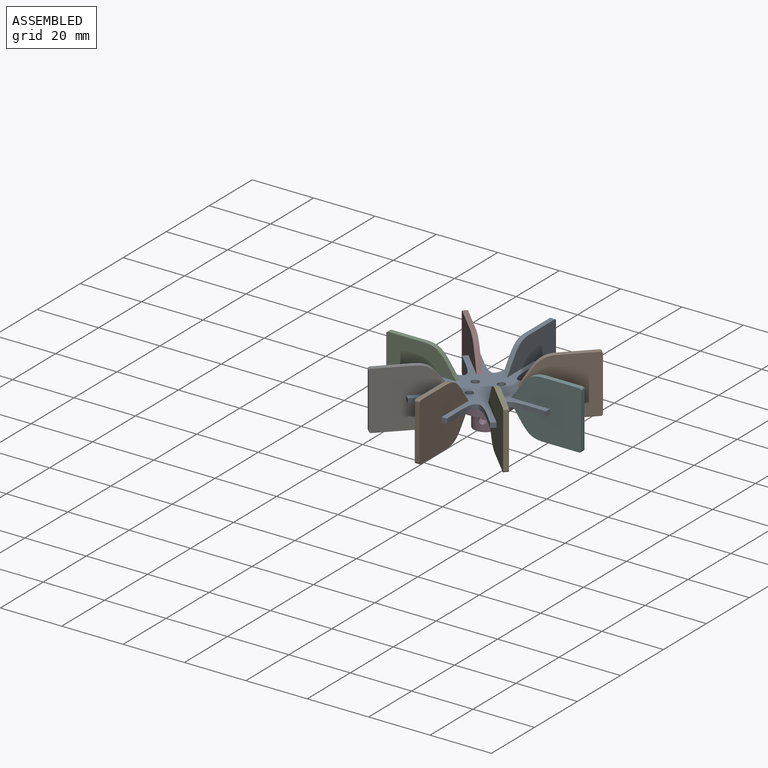
[diagram: assembled view]
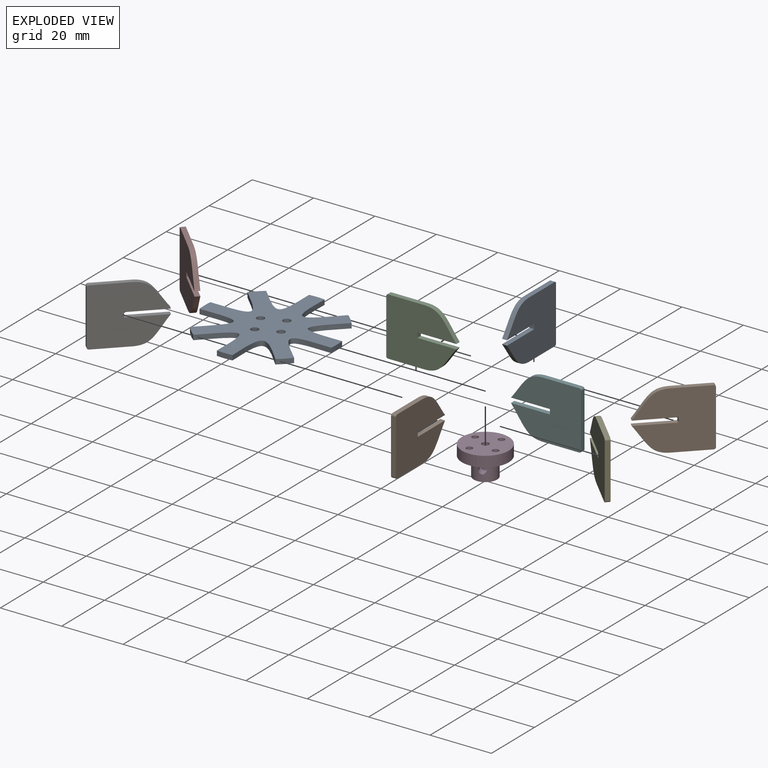
[diagram: exploded view]
GUIDED TOUR — MATED ASSEMBLY (Onshape document fc51b0f20db7901892bb4004, AutoMate assembly fc51b0f20db7901892bb4004_535e6611bf821f6bd09651c5_6fd7693e11c4a4ac724cb510_default)

This assembly has 10 components, labeled P0..P9 below (a component is one placed occurrence of a part; the same part can appear more than once), held together by 2 mates. A mate is a constraint between two components; its type names the relative motion it leaves free:
  FASTENED — locks the two components together rigidly (no relative motion).
Axis/direction vectors are unit vectors and 'through' points are millimeter coordinates, both in the assembly's world frame.

MATES
  1. FASTENED "Fastened 1": P8 <-> P9, direction (0.000, 1.000, 0.000) through (0.00, -21.58, -1.59) mm
  2. FASTENED "Fastened 2": P8 <-> P3, direction (0.000, 0.000, -1.000) through (0.00, 0.00, -2.38) mm

ASSEMBLY ORDER
  1. P5 — the base component [order verified]
  2. P1 [order verified]
  3. P0 [order verified]
  4. P2 [order verified]
  5. P8 [order verified]
  6. P7 [order verified]
  7. P6 [order verified]
  8. P4 [order verified]
  9. P9 [order verified]
  10. P3 [order verified]
Order-tag legend:
  [order verified] — this step's position reverses a verified removal order: the component was checked to insert without passing through the ones already placed.

Of the 10 components, 1 carries the full construction recipe — the FeatureScript program that regenerates the part's solid from scratch; the rest are supplied as boundary geometry only.
Each toured component is shown spotlighted twice — in the assembled view, then in the exploded view, where a leader line traces a displaced component back to its assembled socket (saturated green if recipe-attached, orange if geometry-only; every other component desaturated gray) — followed by its recipe or geometry summary and the mates that hold it.
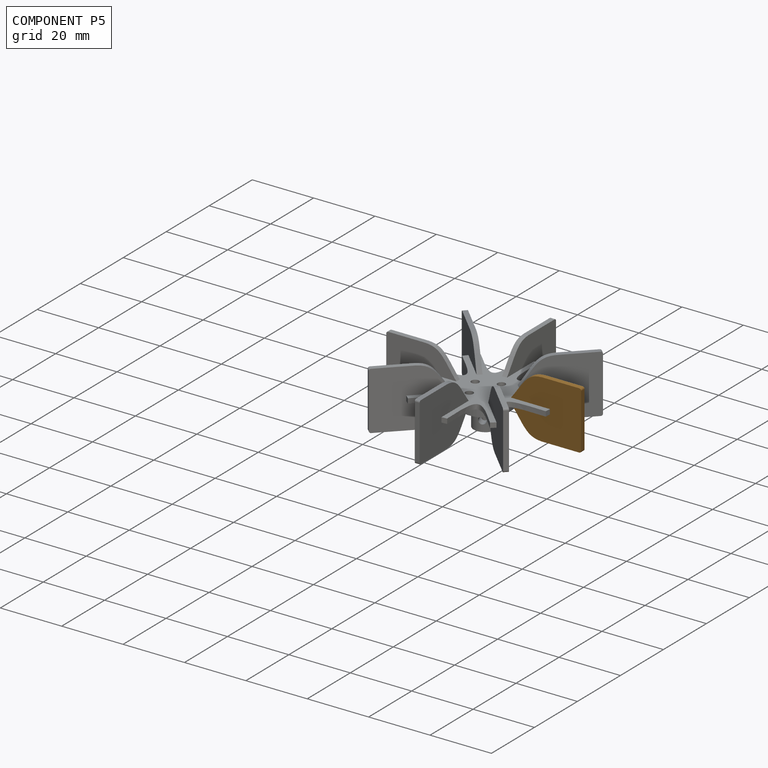
[diagram: component P5 — assembled]
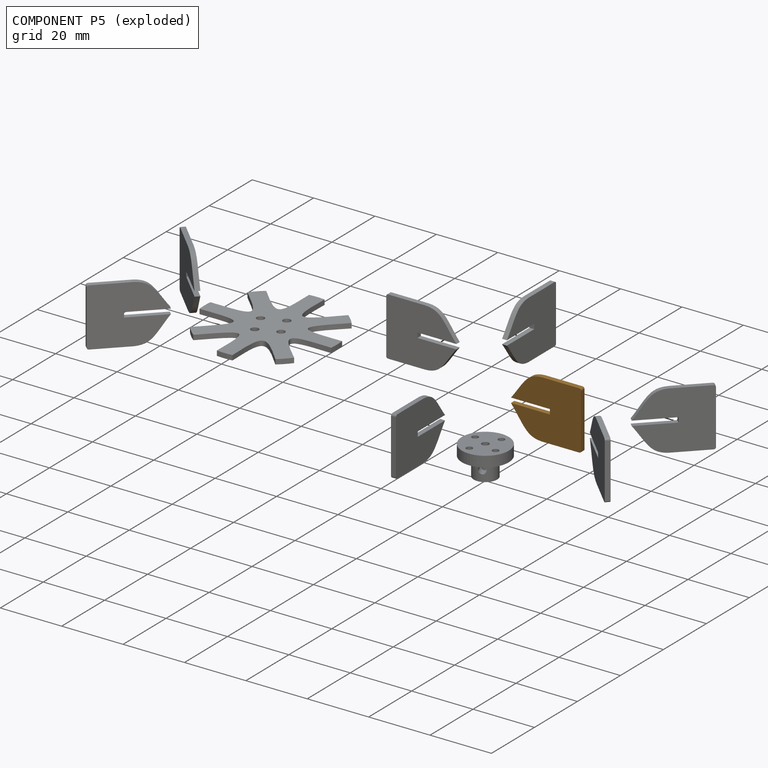
[diagram: component P5 — exploded]
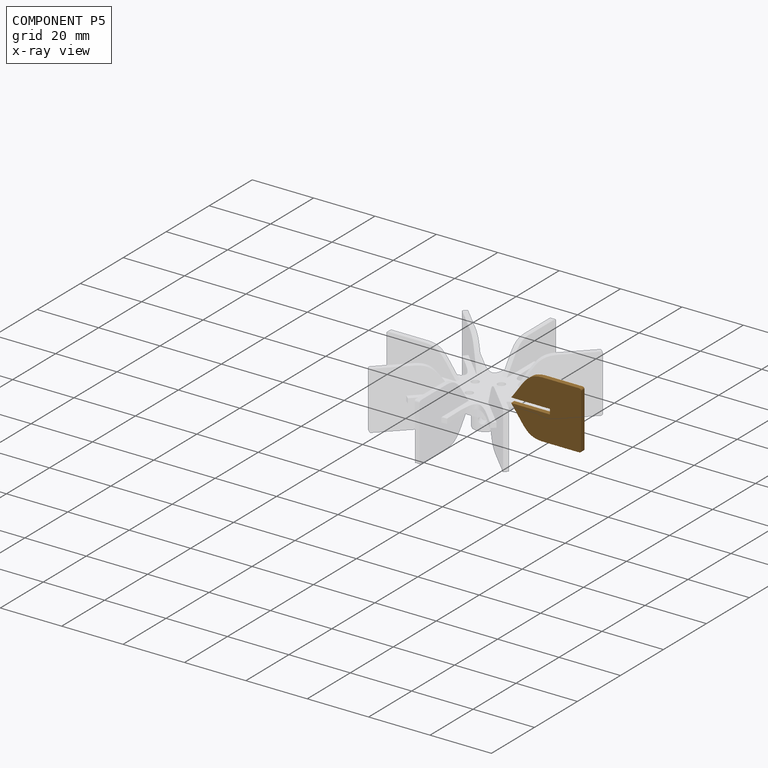
[diagram: component P5 — x-ray view]
COMPONENT P5 — geometry summary (no construction recipe available for this part):
  bounding box: 22.9 x 18.9 x 1.6 mm
  B-rep topology: 1 solid, 12 faces, 60 edges
  volume: 561 mm^3 (82% of its bounding box)
  symmetry: 2-fold rotationally symmetric about the x axis; mirror-symmetric across its y mid-plane, z mid-plane
Held by: no mates (free).
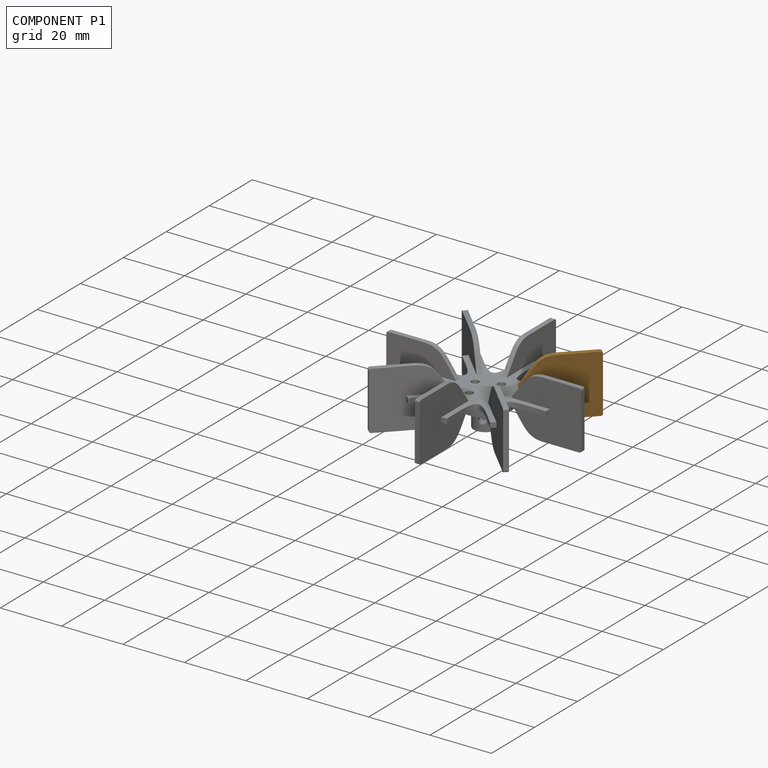
[diagram: component P1 — assembled]
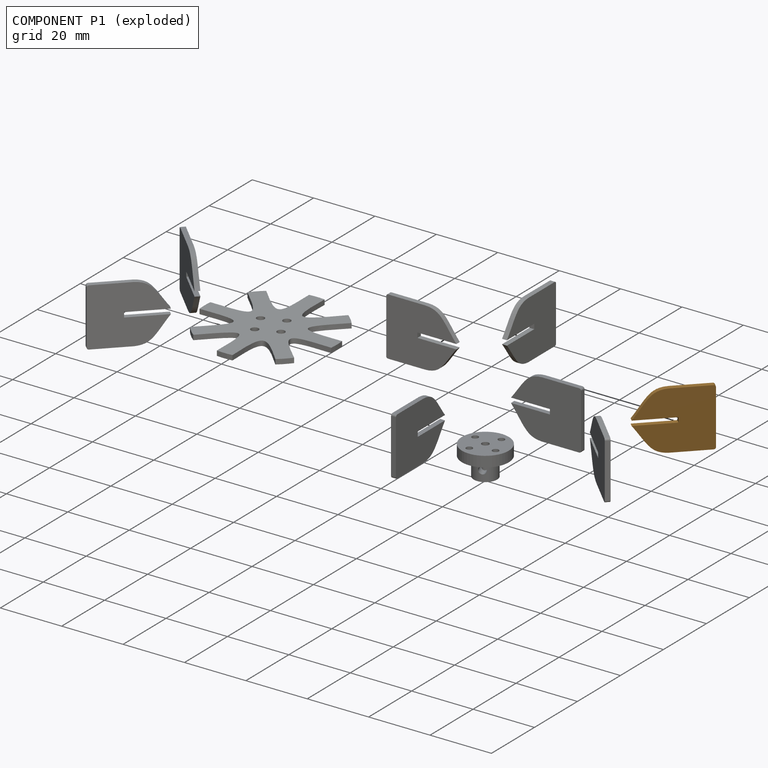
[diagram: component P1 — exploded]
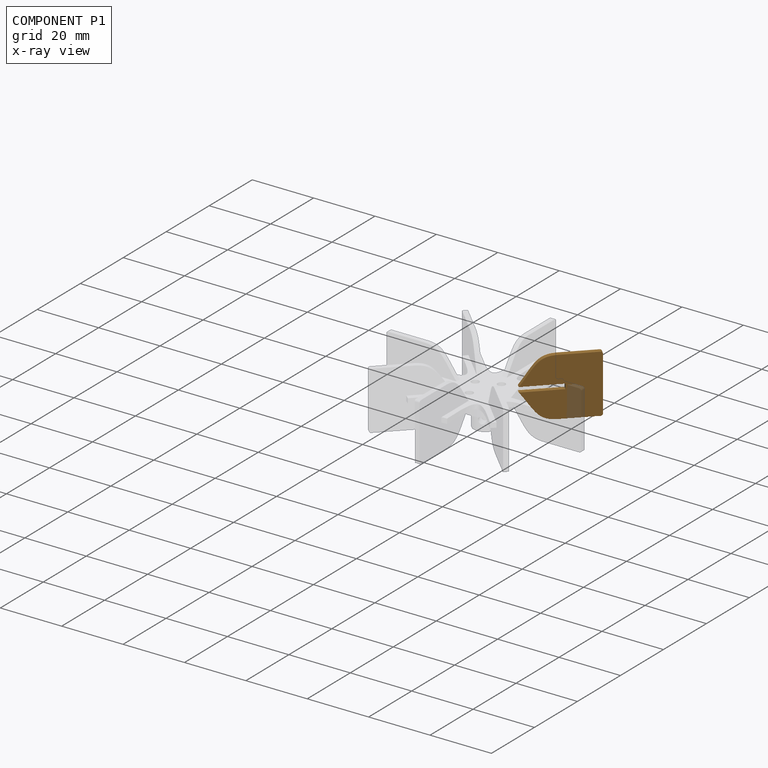
[diagram: component P1 — x-ray view]
COMPONENT P1 — geometry summary (no construction recipe available for this part):
  bounding box: 22.9 x 18.9 x 1.6 mm
  B-rep topology: 1 solid, 12 faces, 60 edges
  volume: 561 mm^3 (82% of its bounding box)
  symmetry: 2-fold rotationally symmetric about the x axis; mirror-symmetric across its y mid-plane, z mid-plane
Held by: no mates (free).
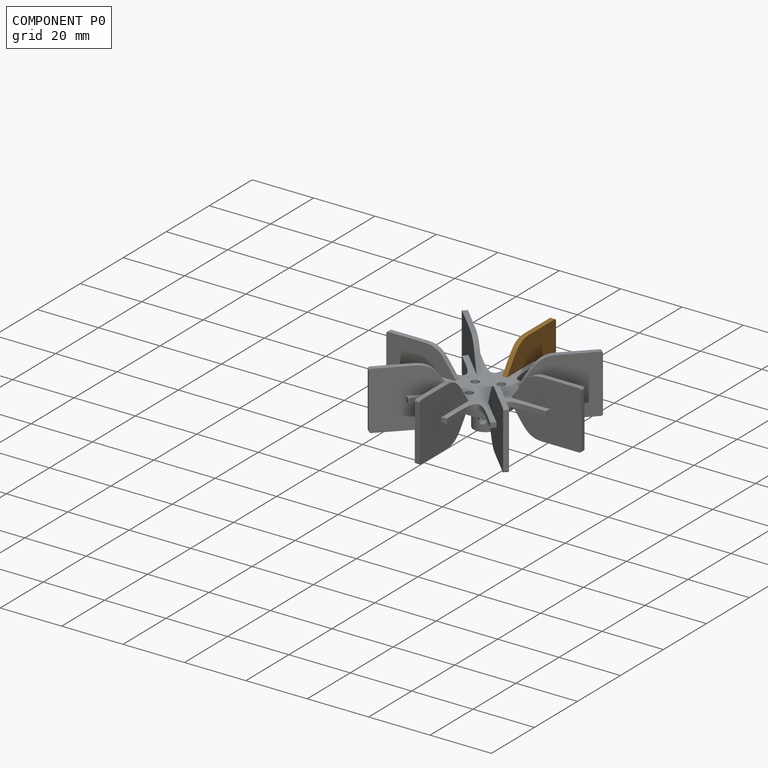
[diagram: component P0 — assembled]
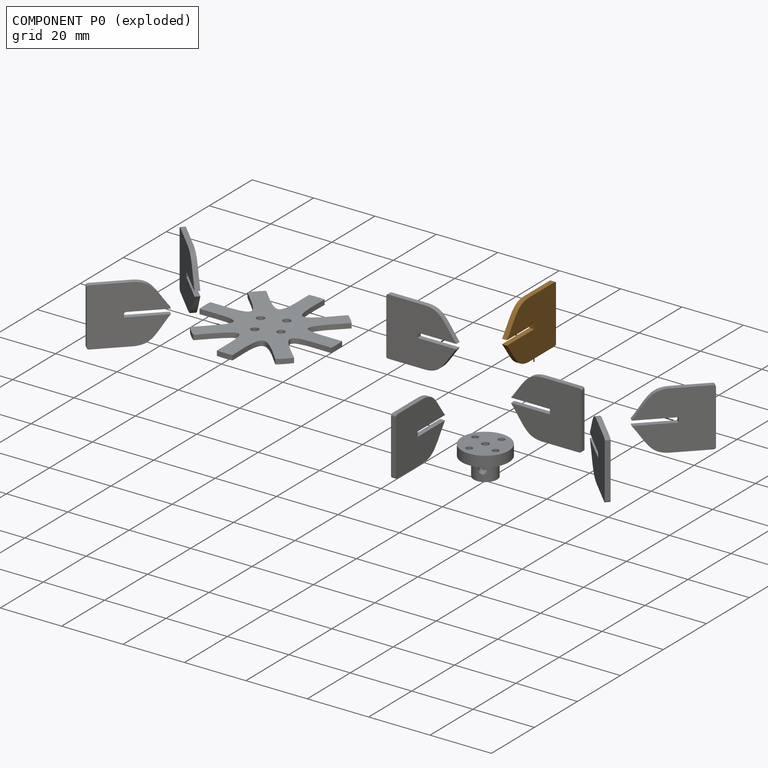
[diagram: component P0 — exploded]
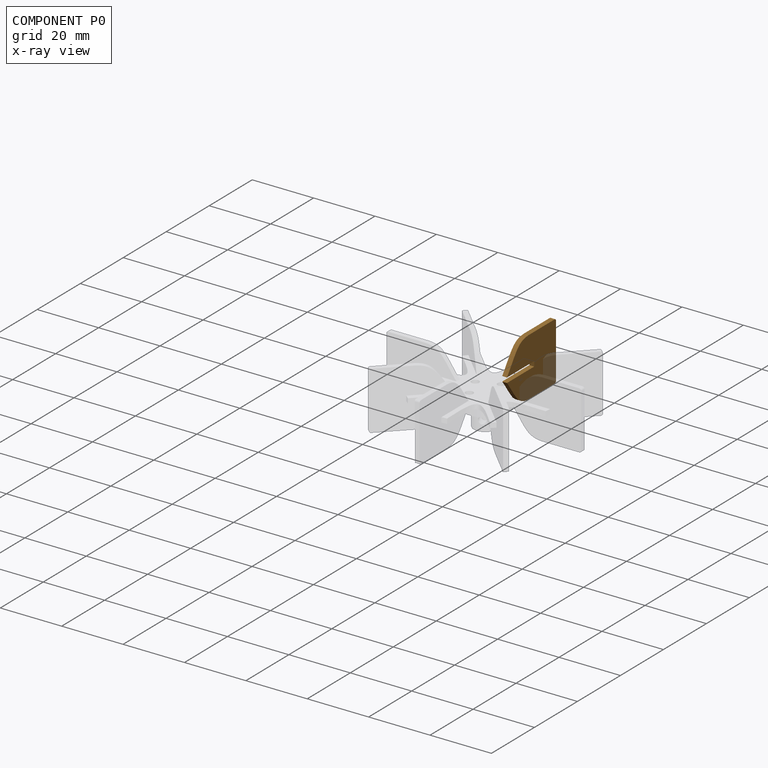
[diagram: component P0 — x-ray view]
COMPONENT P0 — geometry summary (no construction recipe available for this part):
  bounding box: 22.9 x 18.9 x 1.6 mm
  B-rep topology: 1 solid, 12 faces, 60 edges
  volume: 561 mm^3 (82% of its bounding box)
  symmetry: 2-fold rotationally symmetric about the x axis; mirror-symmetric across its y mid-plane, z mid-plane
Held by: no mates (free).
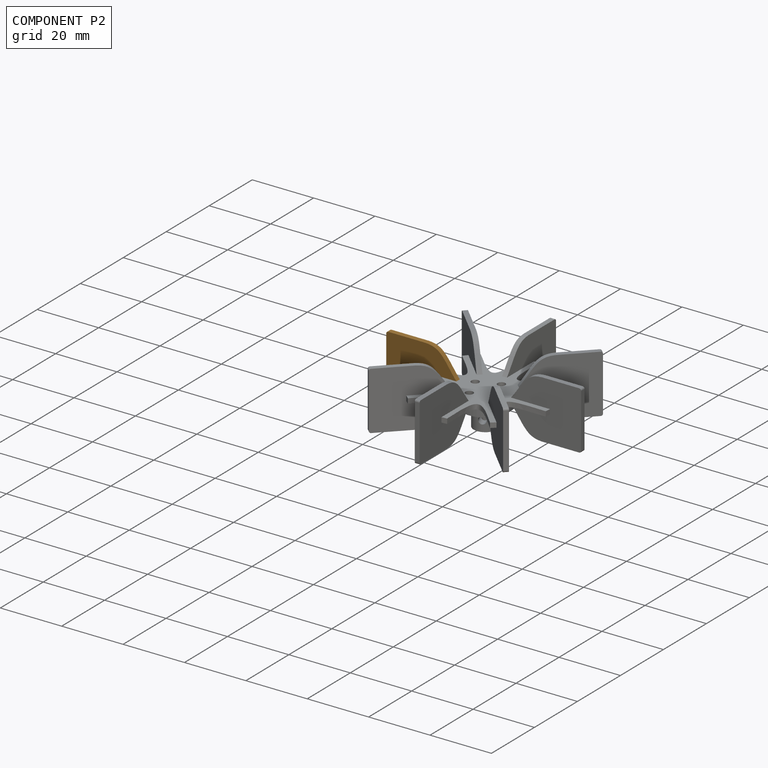
[diagram: component P2 — assembled]
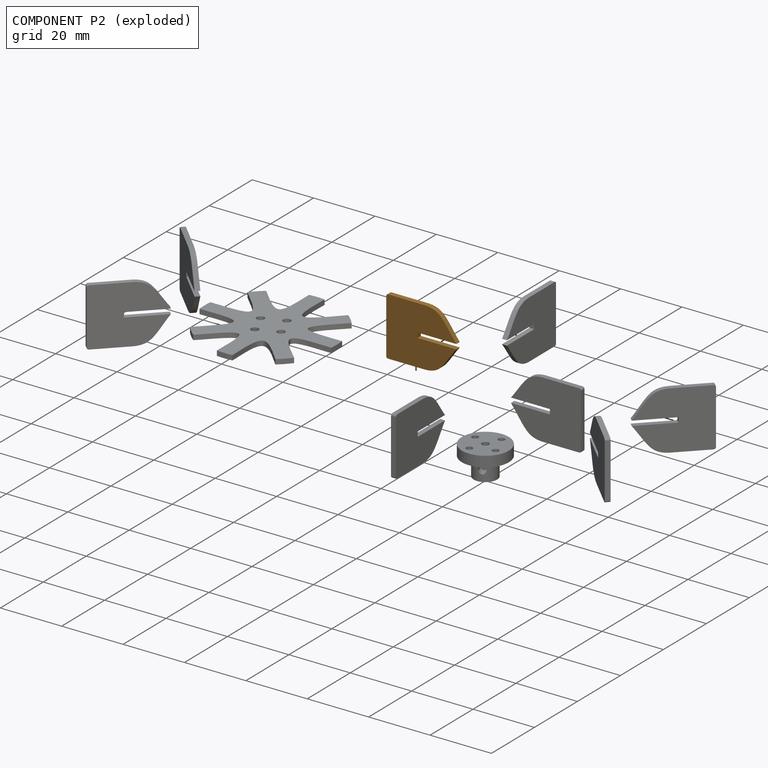
[diagram: component P2 — exploded]
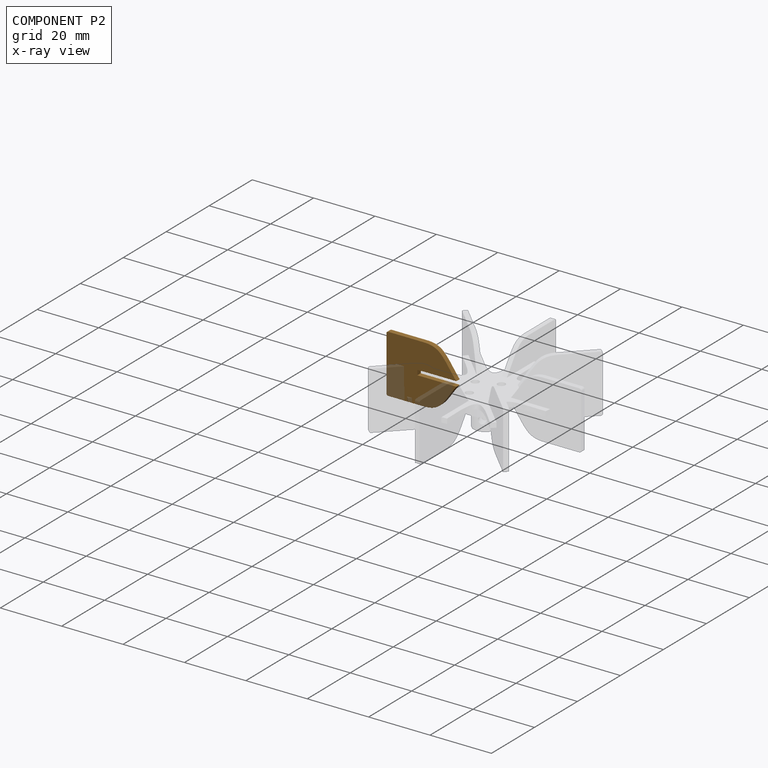
[diagram: component P2 — x-ray view]
COMPONENT P2 — geometry summary (no construction recipe available for this part):
  bounding box: 22.9 x 18.9 x 1.6 mm
  B-rep topology: 1 solid, 12 faces, 60 edges
  volume: 561 mm^3 (82% of its bounding box)
  symmetry: 2-fold rotationally symmetric about the x axis; mirror-symmetric across its y mid-plane, z mid-plane
Held by: no mates (free).
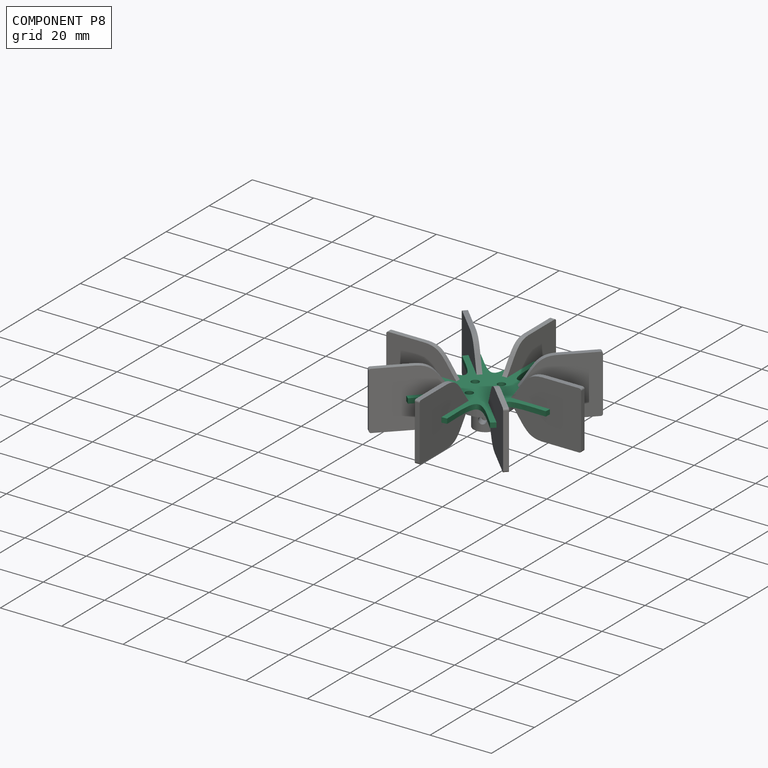
[diagram: component P8 — assembled]
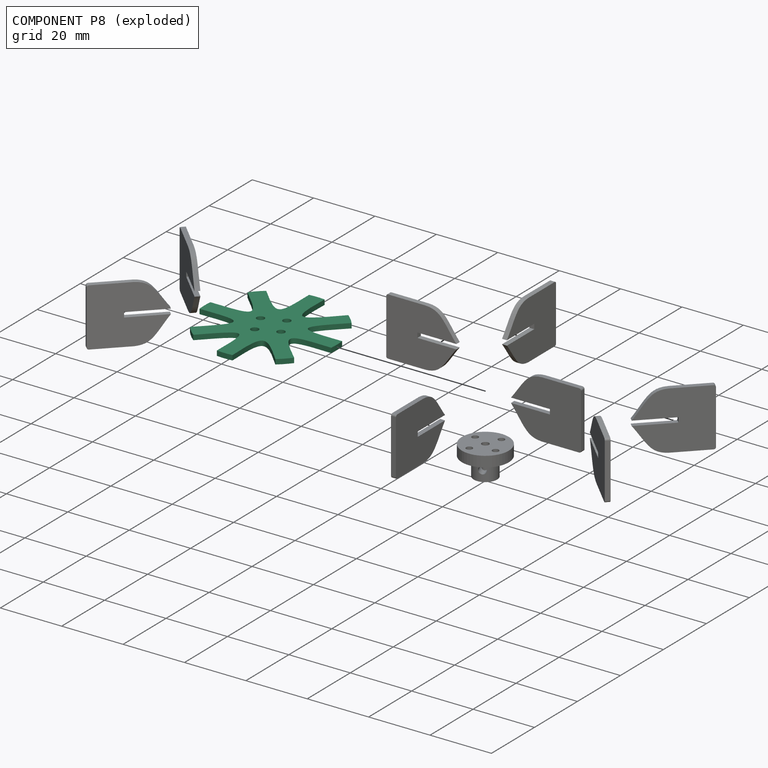
[diagram: component P8 — exploded]
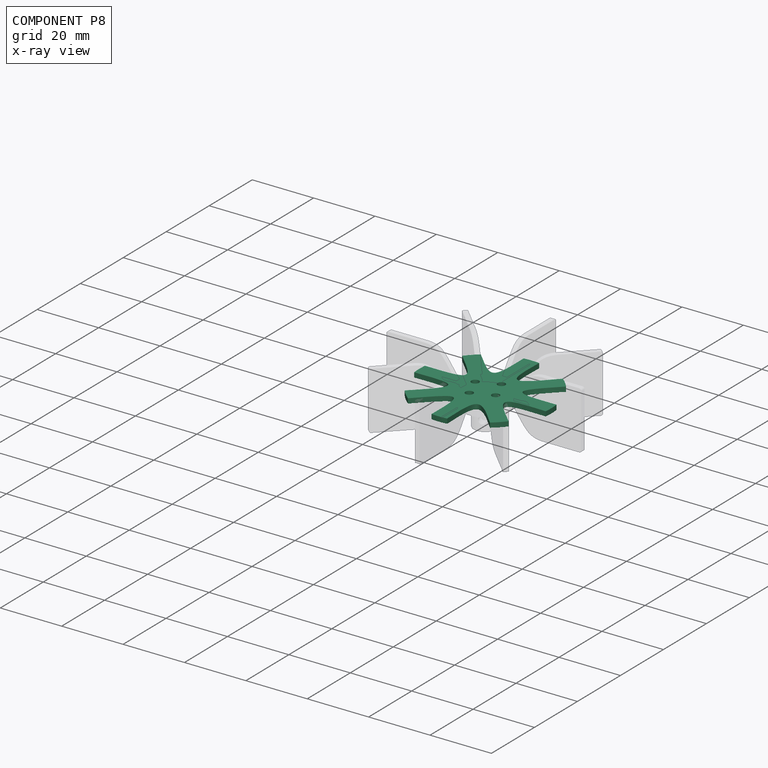
[diagram: component P8 — x-ray view]
COMPONENT P8 — recipe-attached (CADFS 00375645, mesh-verified: the recipe's output STEP matches this component's geometry to below the mesh-comparison resolution (tessellation chordal tolerance ~0.0916 mm)).
Held by: FASTENED mate "Fastened 1" to P9; FASTENED mate "Fastened 2" to P3.
Construction recipe (FeatureScript — the CAD program that rebuilds this solid; sketch coordinates are in the units given by the * unit suffixes, e.g. mm):

FeatureScript 1511;
import(path : "onshape/std/geometry.fs", version : "1511.0");
import(path : "onshape/std/common.fs", version : "1511.0");
const mm = millimeter;
const VERTEX = EntityType.VERTEX;
const EDGE = EntityType.EDGE;
const FACE = EntityType.FACE;
const BODY = EntityType.BODY;
function v(x, y){return vector(x, y);}
function OD(order){return orderDisambiguation(order);}
function OSD(set){return originalSetDisambiguation(set);}
function TD(topology){return topologyDisambiguation(topology);}
function TDD(query){return trueDependencyDisambiguation(query);}
function sQuery(a, b, c) {return sketchEntityQuery(a, b, c);}

annotation { "Feature Type Name" : "Feature", "Feature Type Description" : "" }
export const myFeature = defineFeature(function(context is Context, id is Id, definition is map)
    precondition{}
    {
        {
            var Q0;
            Q0=qCreatedBy(makeId("Top.planeOp"),FACE);
            var sketch = newSketch(context, id + "F0", { "sketchPlane" : qUnion([Q0])});
            skLineSegment(sketch, "E0", {"start": v(0, 30.67) * mm, "end": v(0, -28.01) * mm, "construction": true});
            skLineSegment(sketch, "E1", {"start": v(-28.25, 0) * mm, "end": v(29.1, 0) * mm, "construction": true});
            skLineSegment(sketch, "E2", {"start": v(-21.4, 21.4) * mm, "end": v(20.62, -20.62) * mm, "construction": true});
            skLineSegment(sketch, "E3", {"start": v(21.66, 21.66) * mm, "end": v(-18.96, -18.96) * mm, "construction": true});
            skArc(sketch, "E4", {"start": v(-16.96, 13.36) * mm, "mid": v(-15.27, 15.27) * mm, "end": v(-13.36, 16.96) * mm});
            skArc(sketch, "E5", {"start": v(-2.54, 21.44) * mm, "mid": v(0, 21.59) * mm, "end": v(2.54, 21.44) * mm});
            skArc(sketch, "E6", {"start": v(13.36, 16.96) * mm, "mid": v(15.27, 15.27) * mm, "end": v(16.96, 13.36) * mm});
            skArc(sketch, "E7", {"start": v(-13.36, 16.96) * mm, "mid": v(-6.9, 16.66) * mm, "end": v(-2.54, 21.44) * mm});
            skArc(sketch, "E8", {"start": v(2.54, 21.44) * mm, "mid": v(6.9, 16.66) * mm, "end": v(13.36, 16.96) * mm});
            skArc(sketch, "E9", {"start": v(21.44, 2.54) * mm, "mid": v(21.6, 0) * mm, "end": v(21.44, -2.54) * mm});
            skArc(sketch, "E10", {"start": v(16.96, -13.36) * mm, "mid": v(15.27, -15.27) * mm, "end": v(13.36, -16.96) * mm});
            skArc(sketch, "E11", {"start": v(2.54, -21.44) * mm, "mid": v(0, -21.6) * mm, "end": v(-2.54, -21.44) * mm});
            skArc(sketch, "E12", {"start": v(-13.36, -16.96) * mm, "mid": v(-15.27, -15.27) * mm, "end": v(-16.96, -13.36) * mm});
            skArc(sketch, "E13", {"start": v(-21.44, -2.54) * mm, "mid": v(-21.59, 0) * mm, "end": v(-21.44, 2.54) * mm});
            skArc(sketch, "E14", {"start": v(-21.44, 2.54) * mm, "mid": v(-16.66, 6.9) * mm, "end": v(-16.96, 13.36) * mm});
            skArc(sketch, "E15", {"start": v(-16.96, -13.36) * mm, "mid": v(-16.66, -6.9) * mm, "end": v(-21.44, -2.54) * mm});
            skArc(sketch, "E16", {"start": v(-2.54, -21.44) * mm, "mid": v(-6.9, -16.66) * mm, "end": v(-13.36, -16.96) * mm});
            skArc(sketch, "E17", {"start": v(13.36, -16.96) * mm, "mid": v(6.9, -16.66) * mm, "end": v(2.54, -21.44) * mm});
            skArc(sketch, "E18", {"start": v(21.44, -2.54) * mm, "mid": v(16.66, -6.9) * mm, "end": v(16.96, -13.36) * mm});
            skArc(sketch, "E19", {"start": v(16.96, 13.36) * mm, "mid": v(16.66, 6.9) * mm, "end": v(21.44, 2.54) * mm});
            skCircle(sketch, "E20", {"center": v(0, 0) * mm, "radius": 5.08 * mm, "construction": true});
            skCircle(sketch, "E21", {"center": v(4.7, 1.94) * mm, "radius": 1.24 * mm});
            skCircle(sketch, "E22", {"center": v(-4.7, -1.94) * mm, "radius": 1.24 * mm});
            skCircle(sketch, "E23", {"center": v(1.94, -4.7) * mm, "radius": 1.24 * mm});
            skLineSegment(sketch, "E24", {"start": v(-2.42, 5.85) * mm, "end": v(2.68, -6.46) * mm, "construction": true});
            skLineSegment(sketch, "E25", {"start": v(6.63, 2.74) * mm, "end": v(-6.69, -2.77) * mm, "construction": true});
            skCircle(sketch, "E26", {"center": v(-1.94, 4.7) * mm, "radius": 1.24 * mm});
            skSolve(sketch);
        }
        {
            var Q0;
            Q0 = qSketchRegion(id + "F0", true);
            extrude(context, id + "F1", {"entities" : qUnion([Q0]), "endBound" : BoundingType.SYMMETRIC, "depth" : 1.59 * mm});
        }
        {
            var Q0;
            Q0=qCreatedBy(makeId("Front.planeOp"),FACE);
            var sketch = newSketch(context, id + "F2", { "sketchPlane" : qUnion([Q0])});
            skLineSegment(sketch, "E27", {"start": v(0, 9.03) * mm, "end": v(0, -9.77) * mm, "construction": true});
            skSolve(sketch);
        }
        {
            var Q0;
            Q0=makeQuery(id+"F1.opExtrude","CAP_EDGE",EDGE,{"disambiguationData":[OSD([sQuery(id+"F0.wireOp",EDGE,"E6")])],"isStart":false});
            cPoint(context, id + "F3", {"entities" : qUnion([Q0]), "parameter" : 0.5});
        }
        {
            var Q0;
            Q0=makeQuery(id+"F1.opExtrude","CAP_EDGE",EDGE,{"disambiguationData":[OSD([sQuery(id+"F0.wireOp",EDGE,"E6")])],"isStart":false});
            var Q1;
            Q1 = qCreatedBy(id + "F3" ,VERTEX);
            cPlane(context, id + "F4", {"entities" : qUnion([Q0, Q1]), "cplaneType" : CPlaneType.CURVE_POINT, "offset" : 25.4 * mm, "width" : 152.4 * mm, "height" : 152.4 * mm});
        }
        {
            var Q0;
            Q0=makeQuery(id+"F1.opExtrude","CAP_FACE",FACE,{"disambiguationData":[OSD([sQuery(id+"F0.wireOp",EDGE,"E4"),sQuery(id+"F0.wireOp",EDGE,"E5"),sQuery(id+"F0.wireOp",EDGE,"E6"),sQuery(id+"F0.wireOp",EDGE,"E7"),sQuery(id+"F0.wireOp",EDGE,"E8"),sQuery(id+"F0.wireOp",EDGE,"E9"),sQuery(id+"F0.wireOp",EDGE,"E10"),sQuery(id+"F0.wireOp",EDGE,"E11"),sQuery(id+"F0.wireOp",EDGE,"E12"),sQuery(id+"F0.wireOp",EDGE,"E13"),sQuery(id+"F0.wireOp",EDGE,"E14"),sQuery(id+"F0.wireOp",EDGE,"E15"),sQuery(id+"F0.wireOp",EDGE,"E16"),sQuery(id+"F0.wireOp",EDGE,"E17"),sQuery(id+"F0.wireOp",EDGE,"E18"),sQuery(id+"F0.wireOp",EDGE,"E19"),sQuery(id+"F0.wireOp",EDGE,"E21"),sQuery(id+"F0.wireOp",EDGE,"E22"),sQuery(id+"F0.wireOp",EDGE,"E23"),sQuery(id+"F0.wireOp",EDGE,"E26")])],"isStart":false});
            var sketch = newSketch(context, id + "F5", { "sketchPlane" : qUnion([Q0])});
            skLineSegment(sketch, "E28", {"start": v(-19.28, -7.99) * mm, "end": v(21.9, 9.07) * mm, "construction": true});
            skFitSpline(sketch, "E29", {"points": [v(16.96, 13.36) * mm, v(9.39, 3.89) * mm, v(21.44, 2.54) * mm], "startDerivative": vector(-25.12, -25.19) * mm, "endDerivative": vector(34.63, -0.1) * mm});
            skLineSegment(sketch, "E30", {"start": v(-9.53, 23.02) * mm, "end": v(9.33, -22.54) * mm, "construction": true});
            skFitSpline(sketch, "E31", {"points": [v(2.54, -21.44) * mm, v(3.89, -9.39) * mm, v(13.36, -16.96) * mm], "startDerivative": vector(-0.02, 34.1) * mm, "endDerivative": vector(24.11, -24.05) * mm});
            skLineSegment(sketch, "E32", {"start": v(-21.4, 8.86) * mm, "end": v(22.41, -9.28) * mm, "construction": true});
            skLineSegment(sketch, "E33", {"start": v(8.34, 20.12) * mm, "end": v(-8.56, -20.68) * mm, "construction": true});
            skFitSpline(sketch, "E34", {"points": [v(21.44, -2.54) * mm, v(9.39, -3.89) * mm, v(16.96, -13.36) * mm], "startDerivative": vector(-31.53, 0.26) * mm, "endDerivative": vector(22.55, -22.16) * mm});
            skFitSpline(sketch, "E35", {"points": [v(-13.36, -16.96) * mm, v(-3.89, -9.39) * mm, v(-2.54, -21.44) * mm], "startDerivative": vector(20.74, 21.37) * mm, "endDerivative": vector(-0.44, -29.69) * mm});
            skFitSpline(sketch, "E36", {"points": [v(-21.44, -2.54) * mm, v(-9.39, -3.89) * mm, v(-16.96, -13.36) * mm], "startDerivative": vector(32, 0.4) * mm, "endDerivative": vector(-22.71, -22.36) * mm});
            skFitSpline(sketch, "E37", {"points": [v(-16.96, 13.36) * mm, v(-9.39, 3.89) * mm, v(-21.44, 2.54) * mm], "startDerivative": vector(23.96, -23.72) * mm, "endDerivative": vector(-33.75, 0.07) * mm});
            skFitSpline(sketch, "E38", {"points": [v(-13.36, 16.96) * mm, v(-3.89, 9.39) * mm, v(-2.54, 21.44) * mm], "startDerivative": vector(19.49, -20.2) * mm, "endDerivative": vector(-0.54, 28.11) * mm});
            skFitSpline(sketch, "E39", {"points": [v(2.54, 21.44) * mm, v(3.89, 9.39) * mm, v(13.36, 16.96) * mm], "startDerivative": vector(0.05, -34.8) * mm, "endDerivative": vector(24.68, 24.63) * mm});
            skSolve(sketch);
        }
        {
            var Q0;
            Q0=makeQuery(id+"F5.imprint","IMPRINT",FACE,{"disambiguationData":[TD([[makeQuery(id+"F5.imprint","IMPRINT",EDGE,{"derivedFrom":sQuery(id+"F5.wireOp",EDGE,"E29")}),1.0]])]});
            var Q1;
            Q1=makeQuery(id+"F5.imprint","IMPRINT",FACE,{"disambiguationData":[TD([[makeQuery(id+"F5.imprint","IMPRINT",EDGE,{"derivedFrom":sQuery(id+"F5.wireOp",EDGE,"E31")}),-1.0]])]});
            var Q2;
            Q2=makeQuery(id+"F5.imprint","IMPRINT",FACE,{"disambiguationData":[TD([[makeQuery(id+"F5.imprint","IMPRINT",EDGE,{"derivedFrom":sQuery(id+"F5.wireOp",EDGE,"E34")}),1.0]])]});
            var Q3;
            Q3=makeQuery(id+"F5.imprint","IMPRINT",FACE,{"disambiguationData":[TD([[makeQuery(id+"F5.imprint","IMPRINT",EDGE,{"derivedFrom":sQuery(id+"F5.wireOp",EDGE,"E35")}),-1.0]])]});
            var Q4;
            Q4=makeQuery(id+"F5.imprint","IMPRINT",FACE,{"disambiguationData":[TD([[makeQuery(id+"F5.imprint","IMPRINT",EDGE,{"derivedFrom":sQuery(id+"F5.wireOp",EDGE,"E39")}),1.0]])]});
            var Q5;
            Q5=makeQuery(id+"F5.imprint","IMPRINT",FACE,{"disambiguationData":[TD([[makeQuery(id+"F5.imprint","IMPRINT",EDGE,{"derivedFrom":sQuery(id+"F5.wireOp",EDGE,"E38")}),1.0]])]});
            var Q6;
            Q6=makeQuery(id+"F5.imprint","IMPRINT",FACE,{"disambiguationData":[TD([[makeQuery(id+"F5.imprint","IMPRINT",EDGE,{"derivedFrom":sQuery(id+"F5.wireOp",EDGE,"E37")}),-1.0]])]});
            var Q7;
            Q7=makeQuery(id+"F5.imprint","IMPRINT",FACE,{"disambiguationData":[TD([[makeQuery(id+"F5.imprint","IMPRINT",EDGE,{"derivedFrom":sQuery(id+"F5.wireOp",EDGE,"E36")}),-1.0]])]});
            extrude(context, id + "F6", {"entities" : qUnion([Q0, Q1, Q2, Q3, Q4, Q5, Q6, Q7]), "operationType" : NewBodyOperationType.REMOVE, "endBound" : BoundingType.UP_TO_NEXT, "oppositeDirection" : true, "depth" : 25.4 * mm, "offsetDistance" : 25.4 * mm});
        }
    });
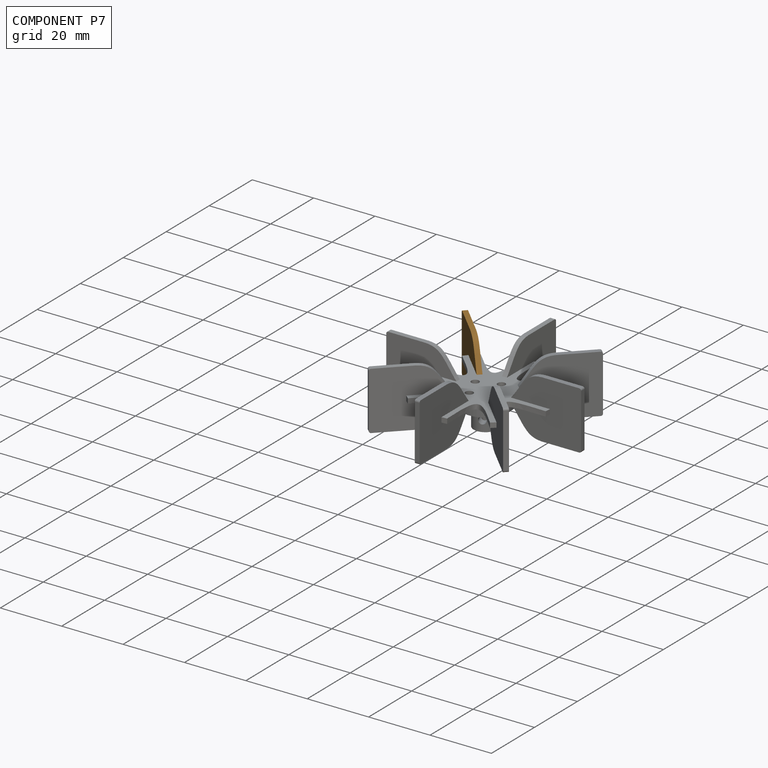
[diagram: component P7 — assembled]
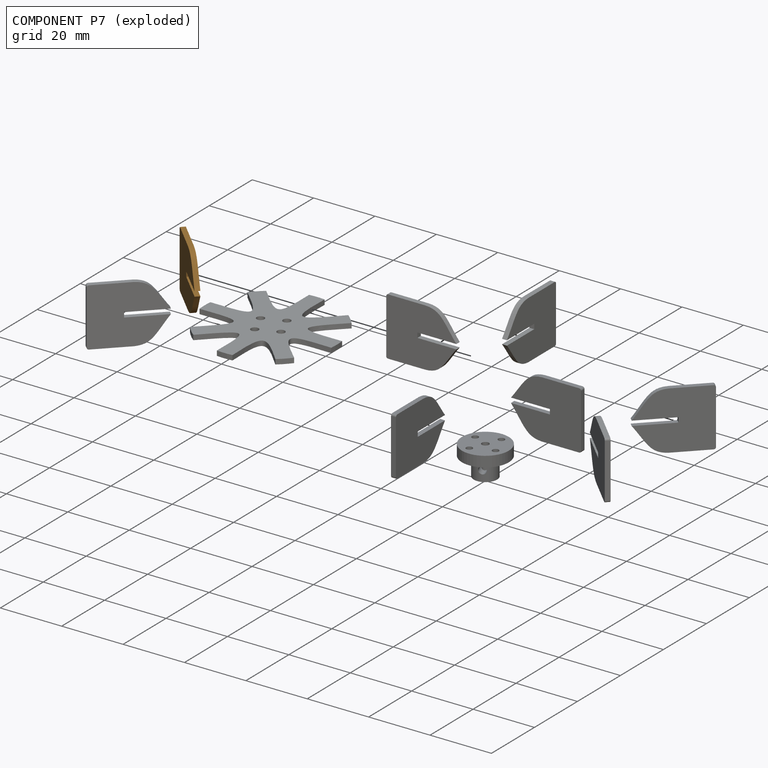
[diagram: component P7 — exploded]
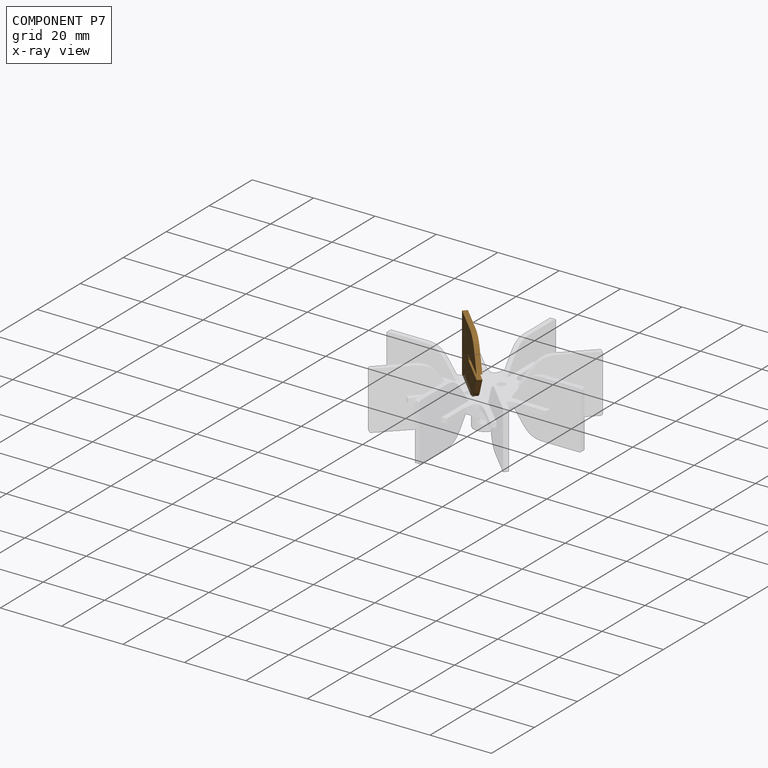
[diagram: component P7 — x-ray view]
COMPONENT P7 — geometry summary (no construction recipe available for this part):
  bounding box: 22.9 x 18.9 x 1.6 mm
  B-rep topology: 1 solid, 12 faces, 60 edges
  volume: 561 mm^3 (82% of its bounding box)
  symmetry: 2-fold rotationally symmetric about the x axis; mirror-symmetric across its y mid-plane, z mid-plane
Held by: no mates (free).
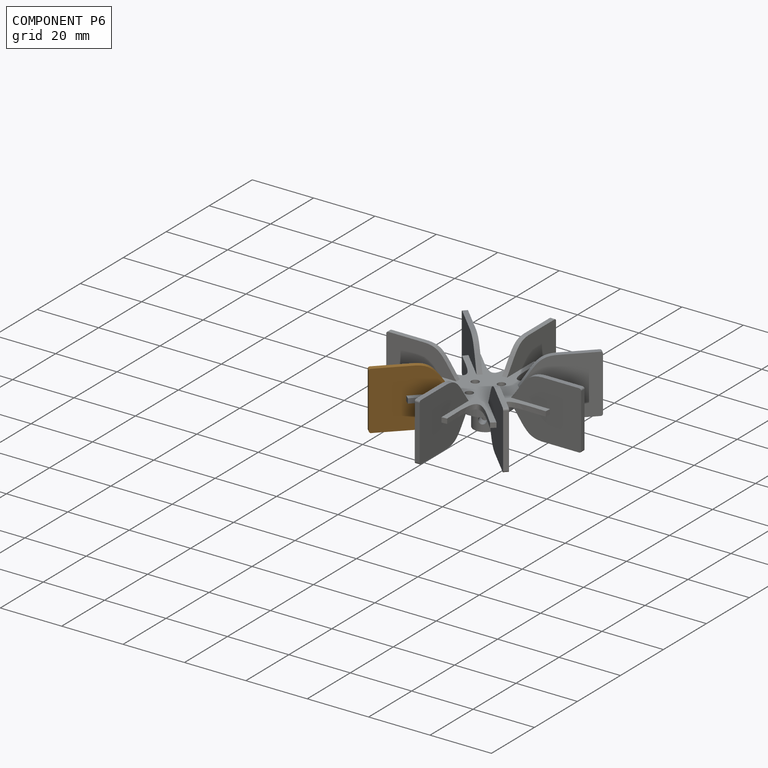
[diagram: component P6 — assembled]
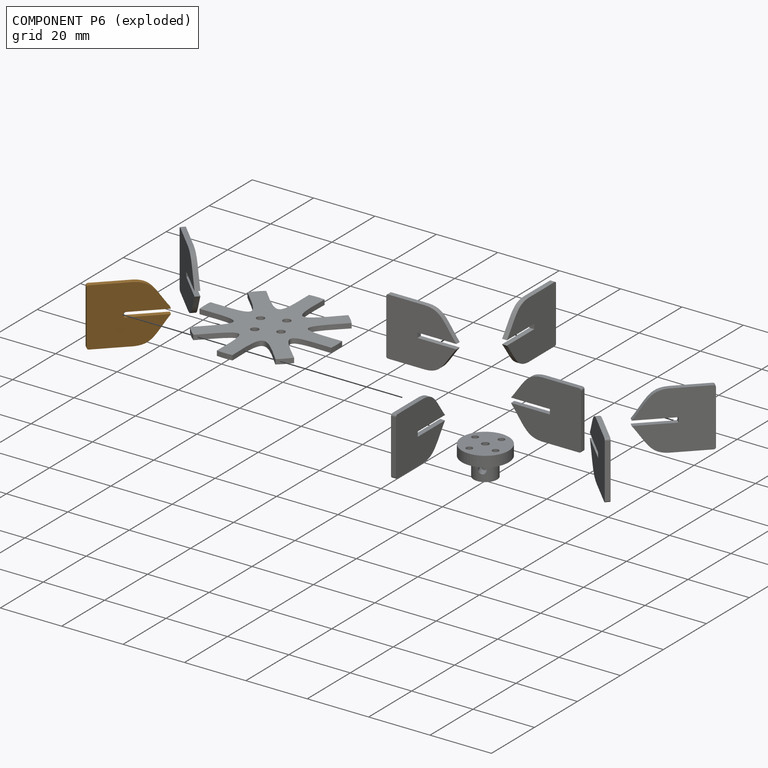
[diagram: component P6 — exploded]
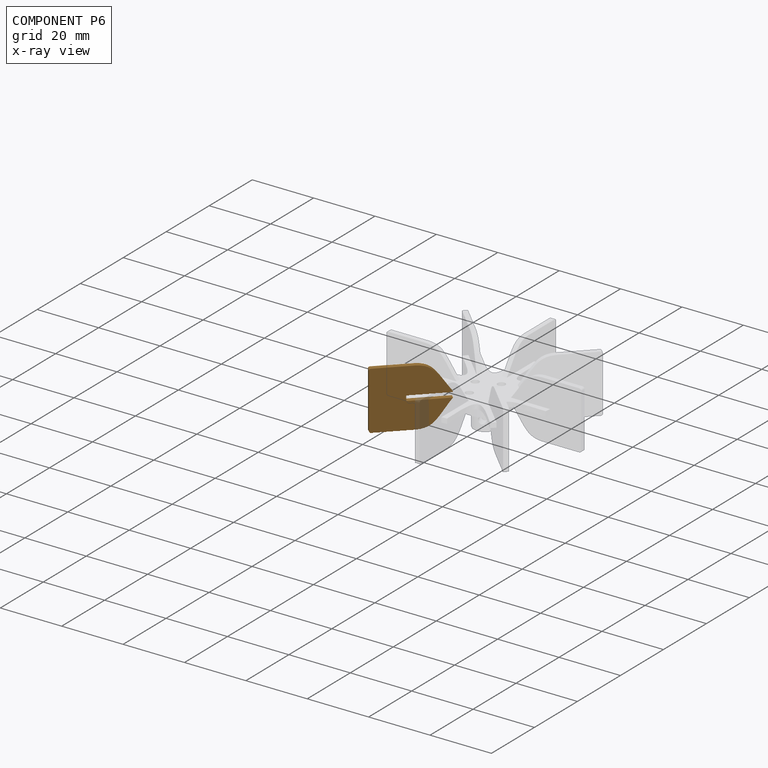
[diagram: component P6 — x-ray view]
COMPONENT P6 — geometry summary (no construction recipe available for this part):
  bounding box: 22.9 x 18.9 x 1.6 mm
  B-rep topology: 1 solid, 12 faces, 60 edges
  volume: 561 mm^3 (82% of its bounding box)
  symmetry: 2-fold rotationally symmetric about the x axis; mirror-symmetric across its y mid-plane, z mid-plane
Held by: no mates (free).
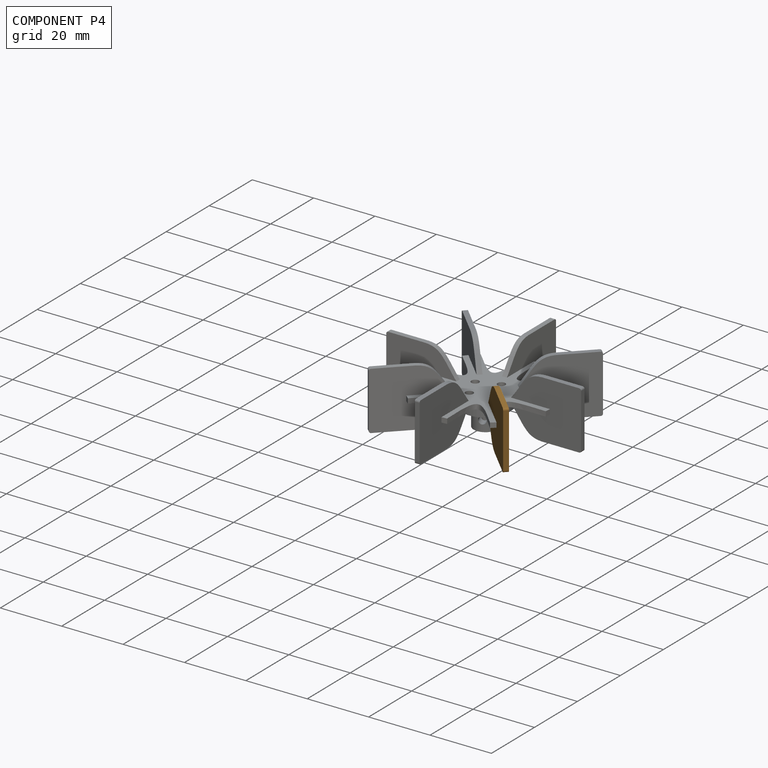
[diagram: component P4 — assembled]
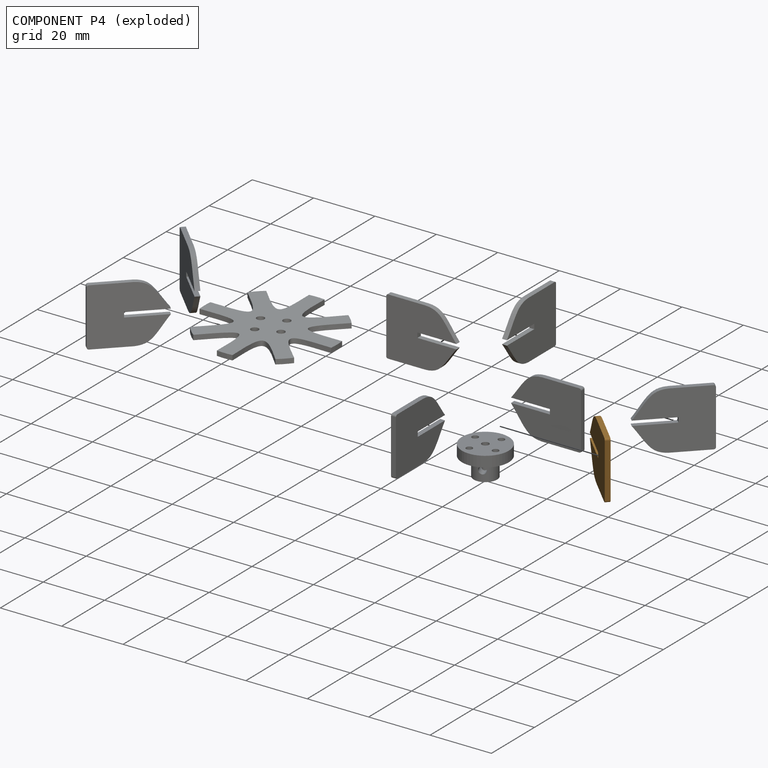
[diagram: component P4 — exploded]
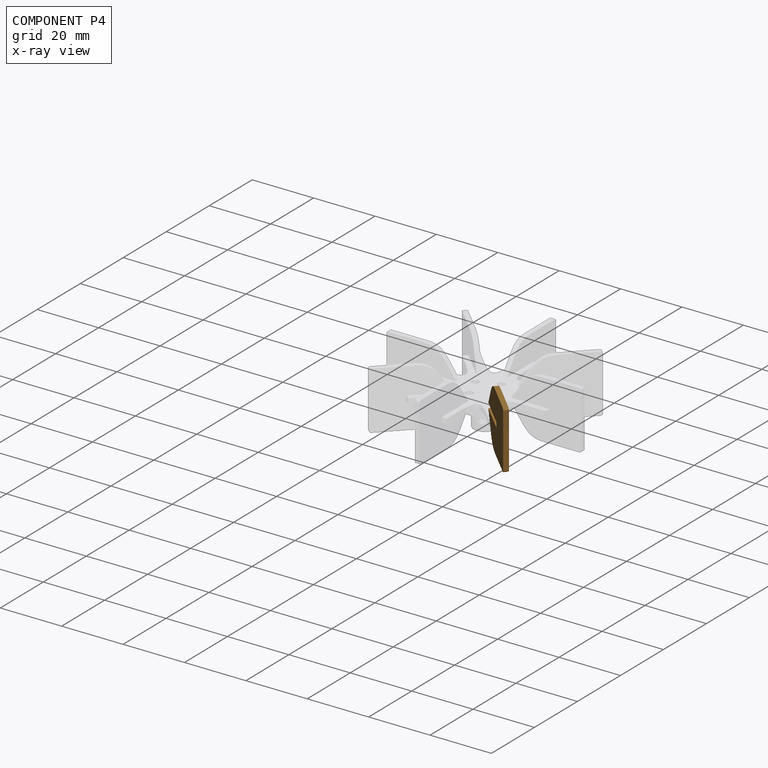
[diagram: component P4 — x-ray view]
COMPONENT P4 — geometry summary (no construction recipe available for this part):
  bounding box: 22.9 x 18.9 x 1.6 mm
  B-rep topology: 1 solid, 12 faces, 60 edges
  volume: 561 mm^3 (82% of its bounding box)
  symmetry: 2-fold rotationally symmetric about the x axis; mirror-symmetric across its y mid-plane, z mid-plane
Held by: no mates (free).
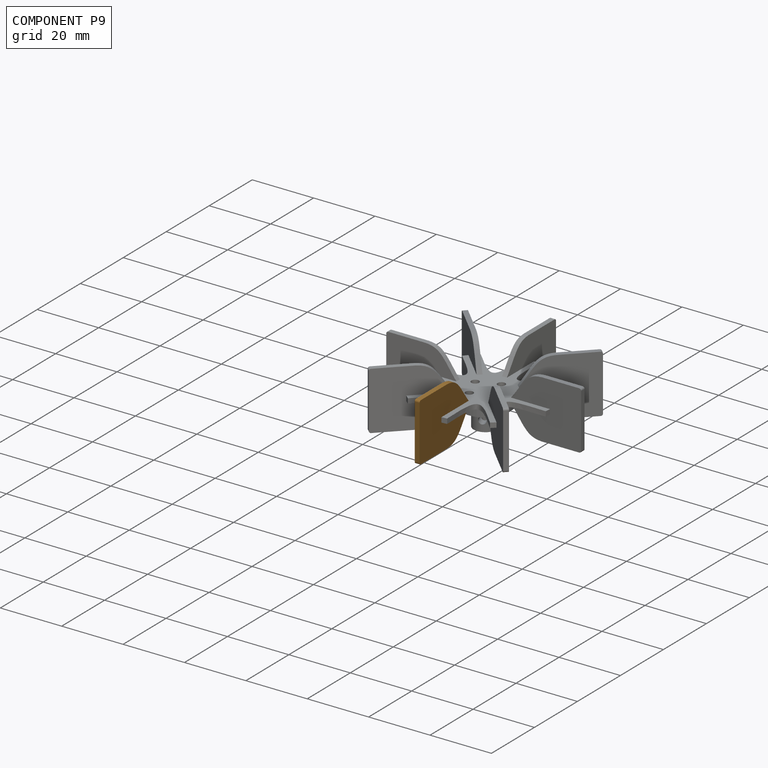
[diagram: component P9 — assembled]
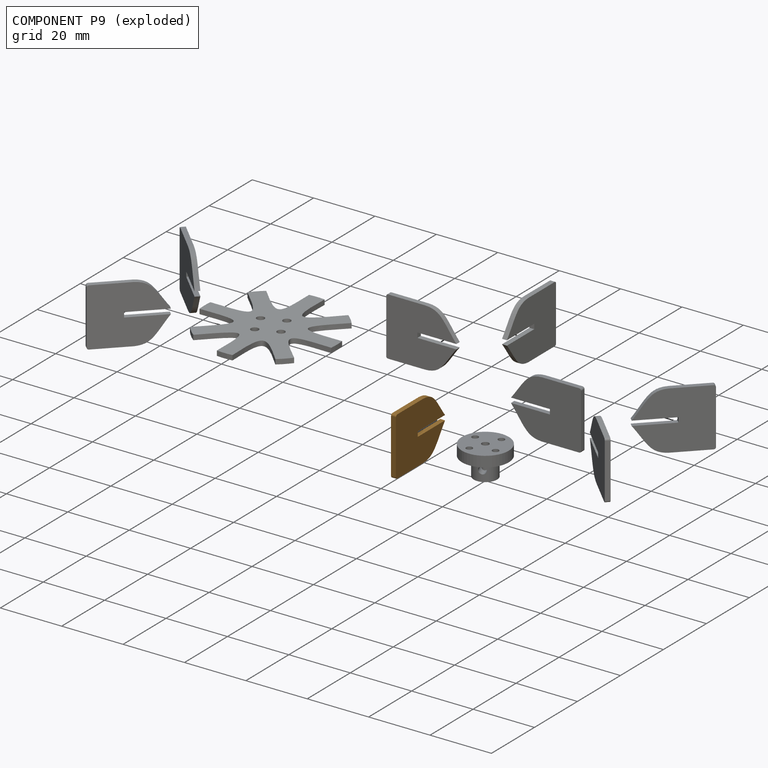
[diagram: component P9 — exploded]
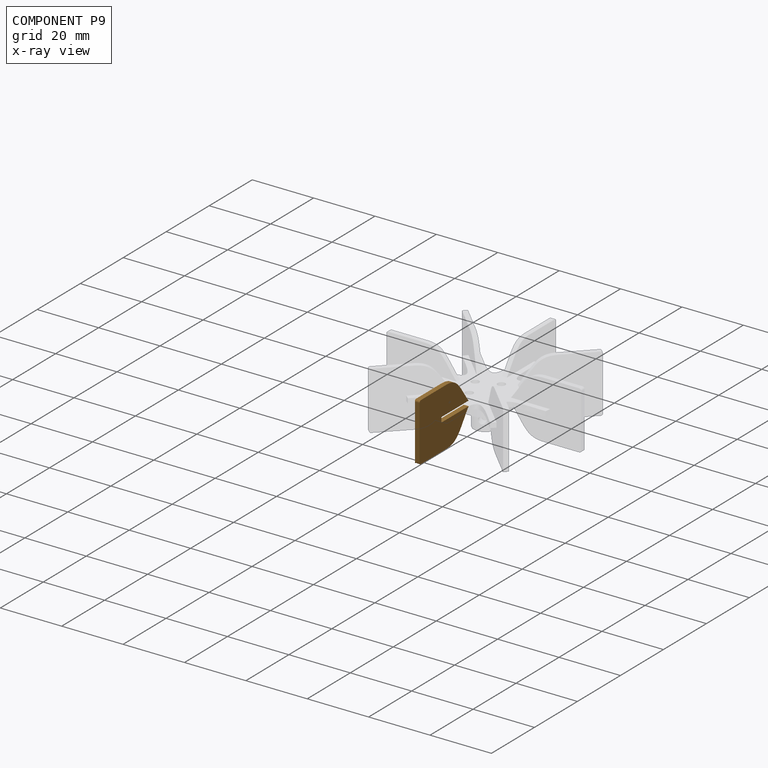
[diagram: component P9 — x-ray view]
COMPONENT P9 — geometry summary (no construction recipe available for this part):
  bounding box: 22.9 x 18.9 x 1.6 mm
  B-rep topology: 1 solid, 12 faces, 60 edges
  volume: 561 mm^3 (82% of its bounding box)
  symmetry: 2-fold rotationally symmetric about the x axis; mirror-symmetric across its y mid-plane, z mid-plane
Held by: FASTENED mate "Fastened 1" to P8.
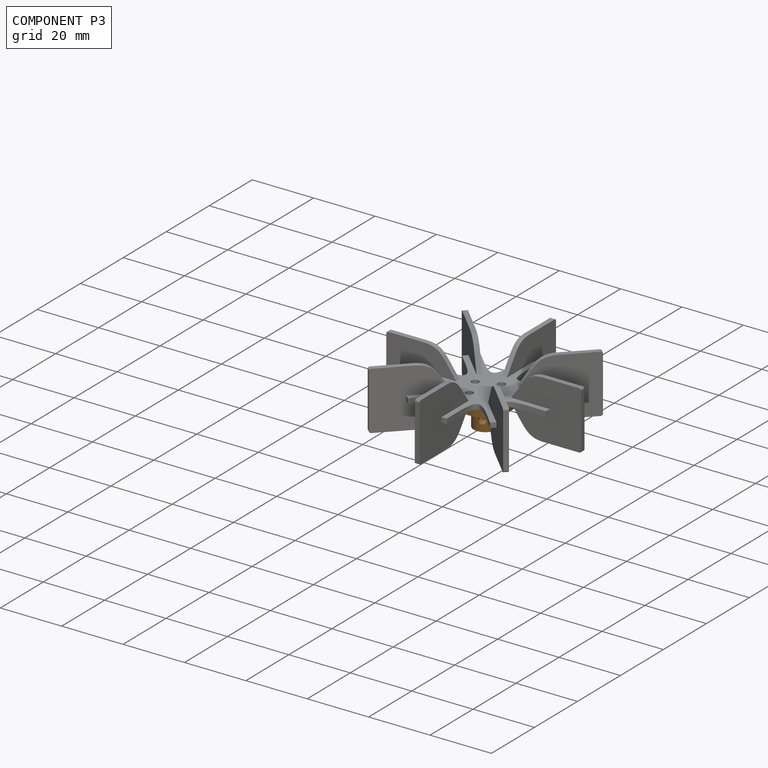
[diagram: component P3 — assembled]
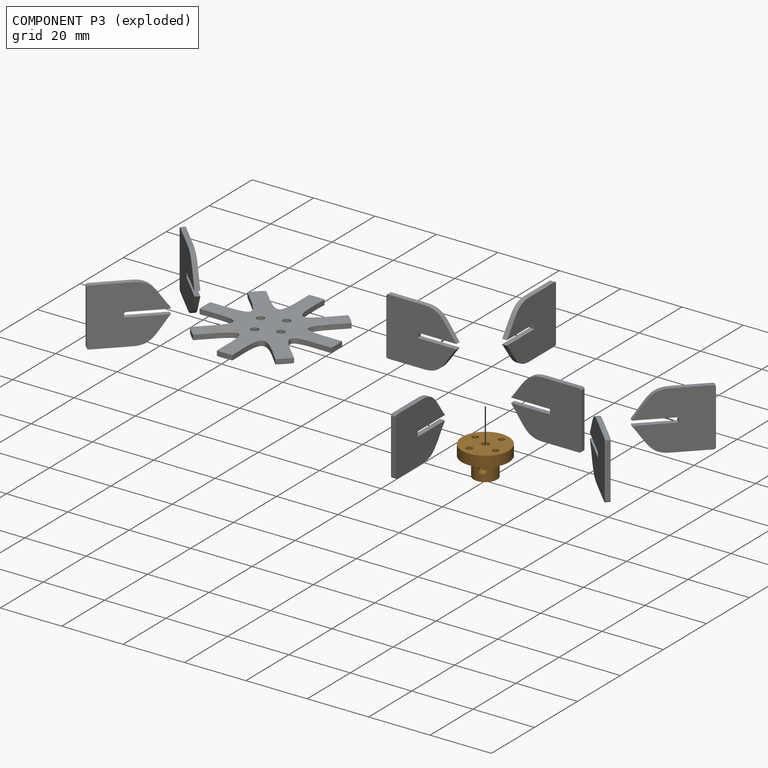
[diagram: component P3 — exploded]
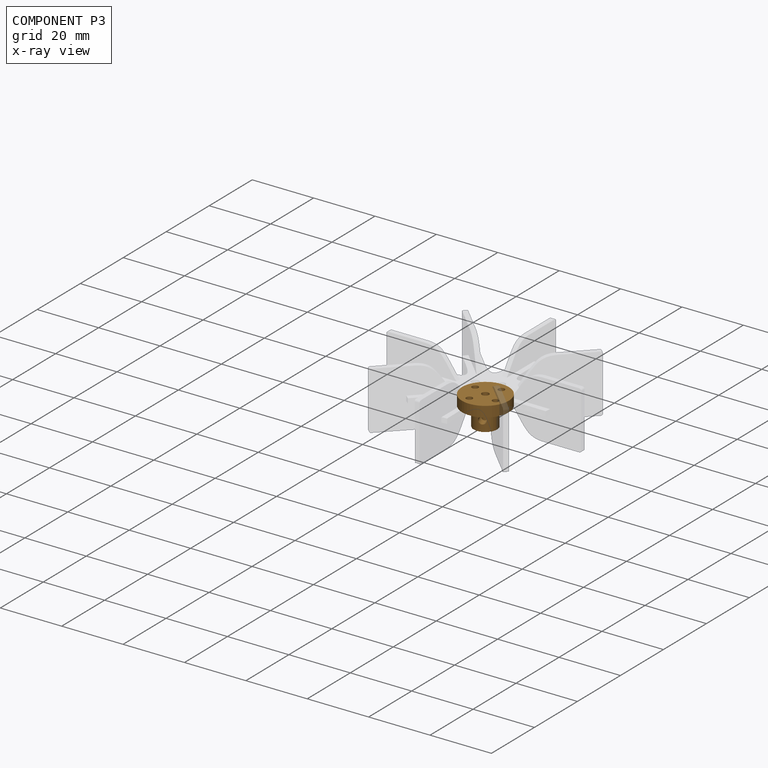
[diagram: component P3 — x-ray view]
COMPONENT P3 — geometry summary (no construction recipe available for this part):
  bounding box: 15.2 x 15.2 x 9.5 mm
  B-rep topology: 1 solid, 12 faces, 62 edges
  volume: 793 mm^3 (36% of its bounding box)
  symmetry: 2-fold rotationally symmetric about the z axis
Held by: FASTENED mate "Fastened 2" to P8.
PROVENANCE & LICENSES
Assembly (occurrences, transforms, mates, per-part STEP geometry): AutoMate dataset, Zenodo record 7776208, CC0.
Construction recipes: CADFS (HuggingFace VladPyatov/CADFS, CC-BY-4.0, layered over the ABC dataset), FeatureScript reconstruction programs keyed by ABC model id.
Join: ABC meta listings map ABC model id -> Onshape documentId; within a shared document, parts are matched by geometric signature (bounding-box dims + volume at 0.1% relative tolerance, exact B-rep face/solid counts).
Verification: 1 of this assembly's 10 components carries a recipe attachment, and every attachment is mesh-verified: the CADFS STEP and the AutoMate member STEP were compared as meshes in their shared local frame (symmetric sampled-point-to-mesh distance); worst across the 1 attachment: below the mesh-comparison resolution (tessellation chordal tolerance ~0.0916 mm) on a 61 mm part.
Renders: orthographic iso camera (az 35 / el 25); the floor grid conveys scale (grid pitch printed in each image; no ruler). In the exploded view each component is displaced by its stored offset vector: the offsets alone carry the explosion direction (mate normal/axis signs are not orientation cues and do not encode it), and separation distances are assigned per mate-chain, not proportionally to assembly-order depth.
